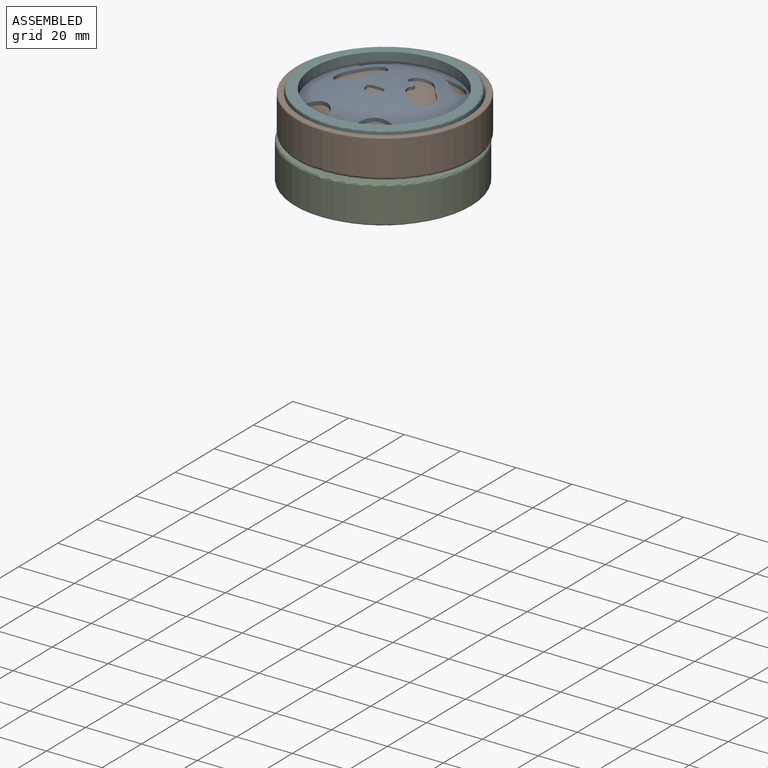
[diagram: assembled view]
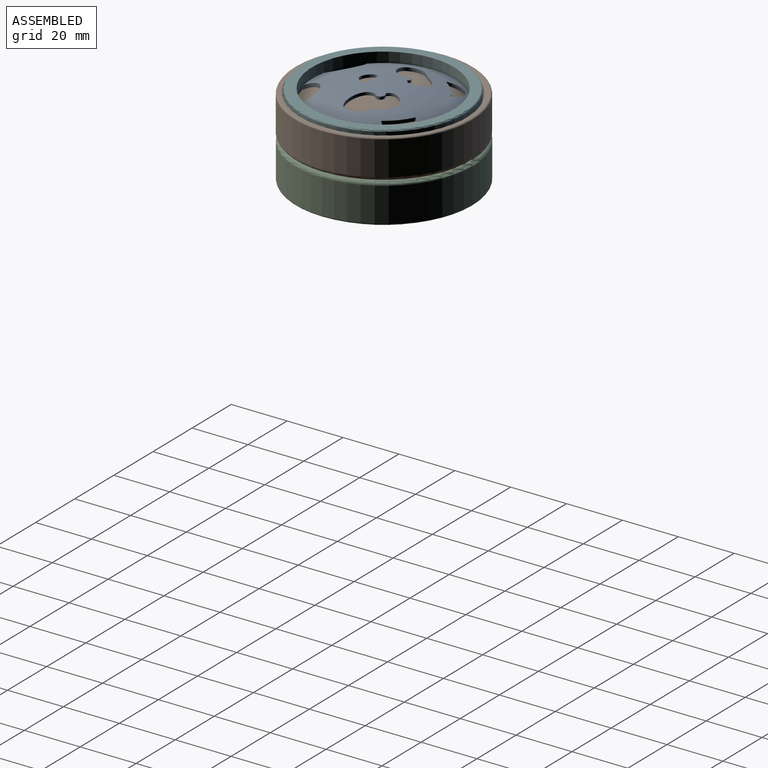
[diagram: assembled view, second angle]
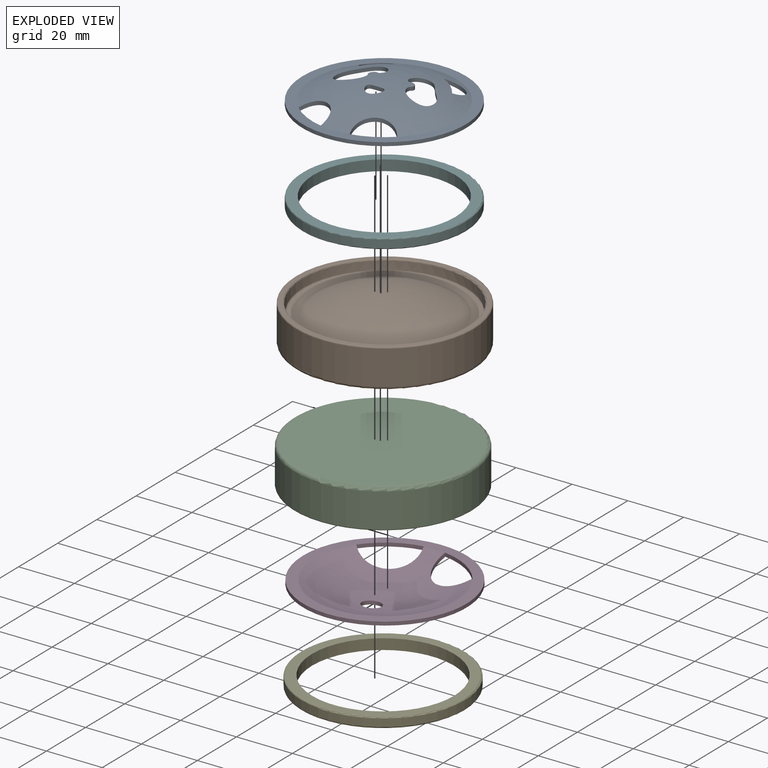
[diagram: exploded view]
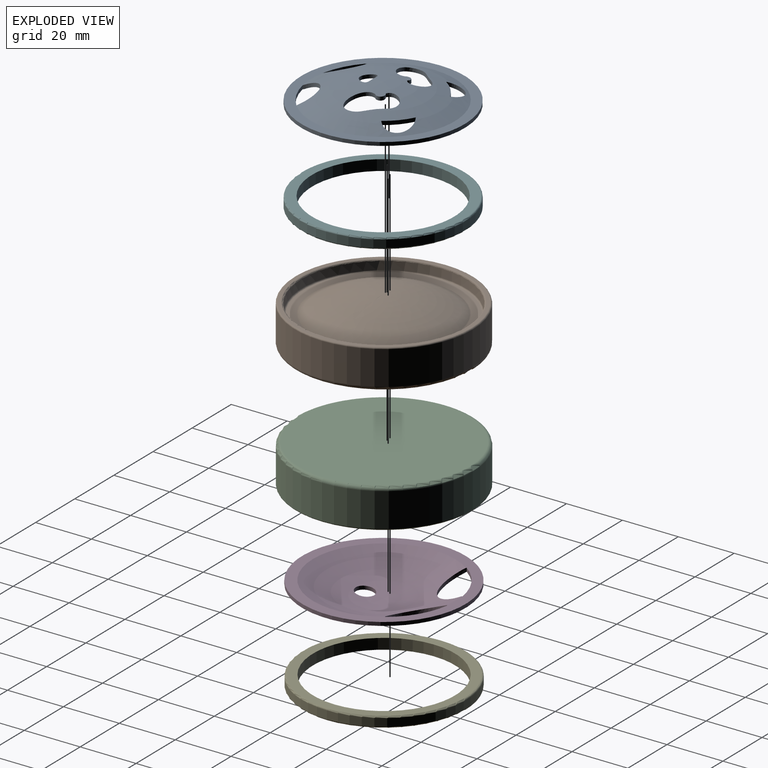
[diagram: exploded view, second angle]
ASSEMBLY  parts=6 mates=5
PART A: 20 faces, bbox 58.4x58.4x7.2 mm
  f0: plane 58.42x58.42mm, normal (0,0,-1), area 645.2mm2, adj f1,f4,f7,f8,f9,f10
  f1: cylinder r=29.21mm len=58.42mm, axis (0,0,1), area 233.1mm2, adj f0,f2
  f2: plane 58.42x58.42mm, normal (0,0,1), area 606.1mm2, adj f1,f3,f7,f9
  f3: sphere r=58.42mm, area 1679.8mm2, adj f2,f5,f6,f8,f10,f11,f12,f13
  f4: sphere r=57.15mm, area 1641.4mm2, adj f0,f5,f6,f8,f10,f11,f12,f13
  f5: extruded ~9.64x8.1mm, area 22.8mm2, adj f3,f4,f6
  f6: cylinder r=19.87mm len=7.79mm, axis (0,0,1), area 14.2mm2, adj f3,f4,f5
  f7: cylinder r=25.7mm len=12.49mm, axis (0,0,1), area 18.1mm2, adj f0,f2,f8
  f8: cylinder r=7.11mm len=12.9mm, axis (0,0,1), area 27.8mm2, adj f0,f3,f4,f7
  f9: cylinder r=25.7mm len=12.49mm, axis (0,0,1), area 18.1mm2, adj f0,f2,f10
  f10: cylinder r=7.11mm len=12.9mm, axis (0,0,1), area 27.8mm2, adj f0,f3,f4,f9
  f11: extruded ~9.64x8.1mm, area 22.8mm2, adj f3,f4,f12
  f12: cylinder r=19.87mm len=7.79mm, axis (0,0,1), area 14.2mm2, adj f3,f4,f11
  f13: extruded ~14.51x13.29mm, area 52mm2, adj f3,f4,f14
  f14: cylinder r=1.57mm len=2.75mm, axis (0,0,1), area 6.3mm2, adj f3,f4,f13
  f15: extruded ~14.51x13.29mm, area 52.1mm2, adj f3,f4,f16
  f16: cylinder r=1.57mm len=2.75mm, axis (0,0,1), area 6.3mm2, adj f3,f4,f15
  f17: extruded ~4.53x3.17mm, area 8.9mm2, adj f3,f4,f18,f19
  f18: extruded ~4.53x3.17mm, area 8.9mm2, adj f3,f4,f17,f19
  f19: plane 3.8x1.3mm, normal (0,-1,0), area 4.8mm2, adj f3,f4,f17,f18
PART B: 11 faces, bbox 68.7x68.7x14 mm
  f0: cylinder r=31.75mm len=63.5mm, axis (0,0,1), area 2432.2mm2, adj f9,f10
  f1: plane 60.96x60.96mm, normal (0,0,-1), area 2918.6mm2, adj f10
  f2: revolved ~0x0mm, area 0mm2, adj f6
  f3: plane 57.49x57.49mm, normal (0,0,1), area 549.2mm2, adj f6,f7
  f4: cone r=29.21mm half-angle=5deg, axis (0,0,1), area 534.1mm2, adj f7,f8
  f5: plane 62.48x62.48mm, normal (0,0,1), area 237.3mm2, adj f8,f9
  f6: torus R=25.52mm, axis (0,0,1), area 38.4mm2, adj f2,f3
  f7: torus R=28.74mm, axis (0,0,1), area 137.6mm2, adj f3,f4
  f8: torus R=30.01mm, axis (0,0,1), area 140.6mm2, adj f4,f5
  f9: torus R=31.24mm, axis (0,0,1), area 158.3mm2, adj f0,f5
  f10: torus R=30.48mm, axis (0,0,-1), area 392.2mm2, adj f0,f1
PART C: same geometry as B
PART D: 10 faces, bbox 58.4x58.4x7.2 mm
  f0: plane 58.42x58.42mm, normal (0,0,-1), area 641.6mm2, adj f1,f4,f5,f6,f7,f8
  f1: cylinder r=29.21mm len=58.42mm, axis (0,0,1), area 233.1mm2, adj f0,f2
  f2: plane 58.42x58.42mm, normal (0,0,1), area 606.1mm2, adj f1,f3,f5,f7
  f3: sphere r=58.42mm, area 1834mm2, adj f2,f6,f8,f9
  f4: sphere r=57.15mm, area 1798.7mm2, adj f0,f6,f8,f9
  f5: cylinder r=25.7mm len=16.94mm, axis (0,0,1), area 25.9mm2, adj f0,f2,f6
  f6: cylinder r=10.11mm len=17.55mm, axis (0,0,1), area 37.4mm2, adj f0,f3,f4,f5
  f7: cylinder r=25.7mm len=16.94mm, axis (0,0,1), area 25.9mm2, adj f0,f2,f8
  f8: cylinder r=10.11mm len=17.55mm, axis (0,0,1), area 37.6mm2, adj f0,f3,f4,f7
  f9: cylinder r=3.3mm len=6.6mm, axis (0,0,1), area 26.6mm2, adj f3,f4
PART E: 6 faces, bbox 63.2x63.2x3.8 mm
  f0: cylinder r=25.4mm len=50.8mm, axis (0,0,-1), area 608mm2, adj f2,f3
  f1: cylinder r=29.21mm len=58.42mm, axis (0,0,-1), area 512.8mm2, adj f4,f5
  f2: plane 57.4x57.4mm, normal (0,0,1), area 561.2mm2, adj f0,f4
  f3: plane 57.4x57.4mm, normal (0,0,-1), area 561.2mm2, adj f0,f5
  f4: torus R=28.7mm, axis (0,0,1), area 145.5mm2, adj f1,f2
  f5: torus R=28.7mm, axis (0,0,1), area 145.5mm2, adj f1,f3
PART F: same geometry as E
PLACE A t=(57.46,10.64,-6.94)mm
PLACE B t=(25.71,10.93,-8.21)mm
PLACE C rot(axis=(-1,0,0),180deg) t=(25.25,10.66,-29.09)mm
PLACE D rot(axis=(1,0,0),180deg) t=(57.46,10.93,-29.8)mm
PLACE E rot(axis=(1,0,0),180deg) t=(57,10.66,-30.36)mm
PLACE F t=(57.46,10.64,-6.94)mm
MATE parallel E.f0 <-> D.f1  axis (0,0,1) through (57,10.66,-30.36)mm
MATE parallel C.f4 <-> B.f6  axis (0,0,1) through (57,10.66,-18.93)mm
MATE parallel D.f1 <-> C.f0  axis (0,0,1) through (57.46,10.93,-28.53)mm
MATE parallel F.f0 <-> A.f1  axis (0,0,-1) through (57.46,10.64,-6.94)mm
MATE planar A.f0 <-> B.f0  axis (0,0,-1) through (57.46,10.93,-8.21)mm
